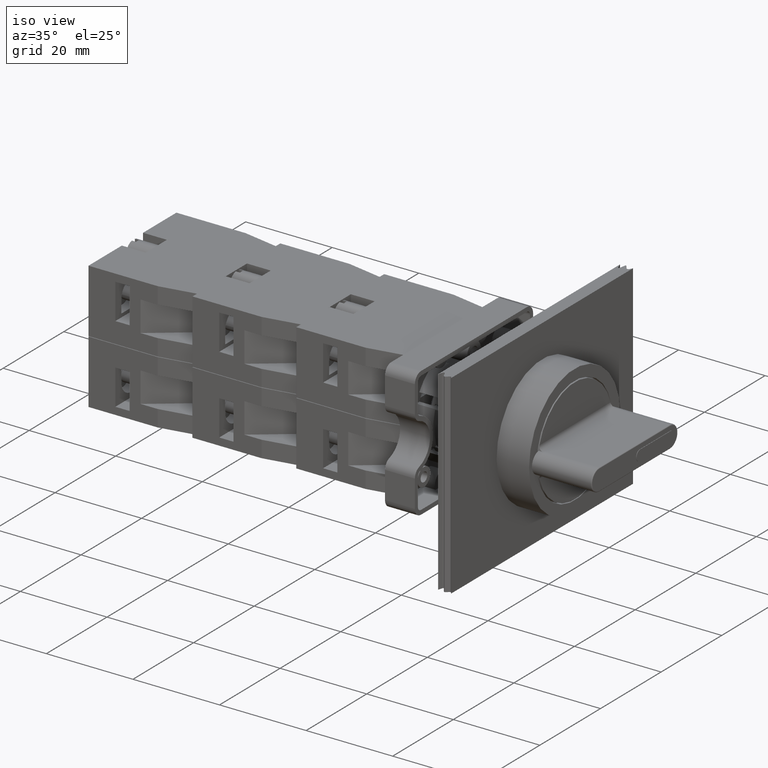
[diagram: clean part render]
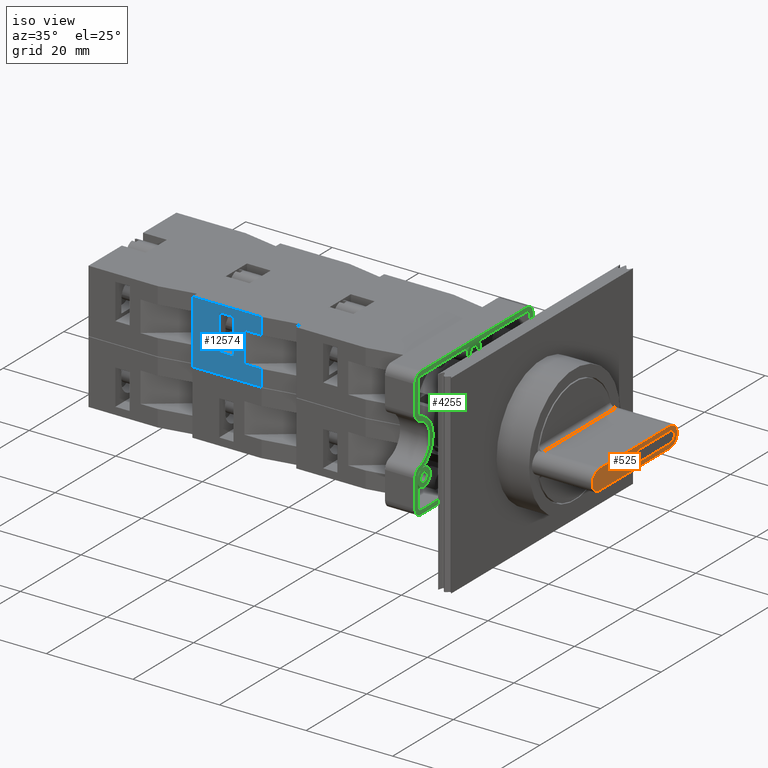
[diagram: same view with three faces highlighted in distinct colors, each labeled with its STEP entity id]
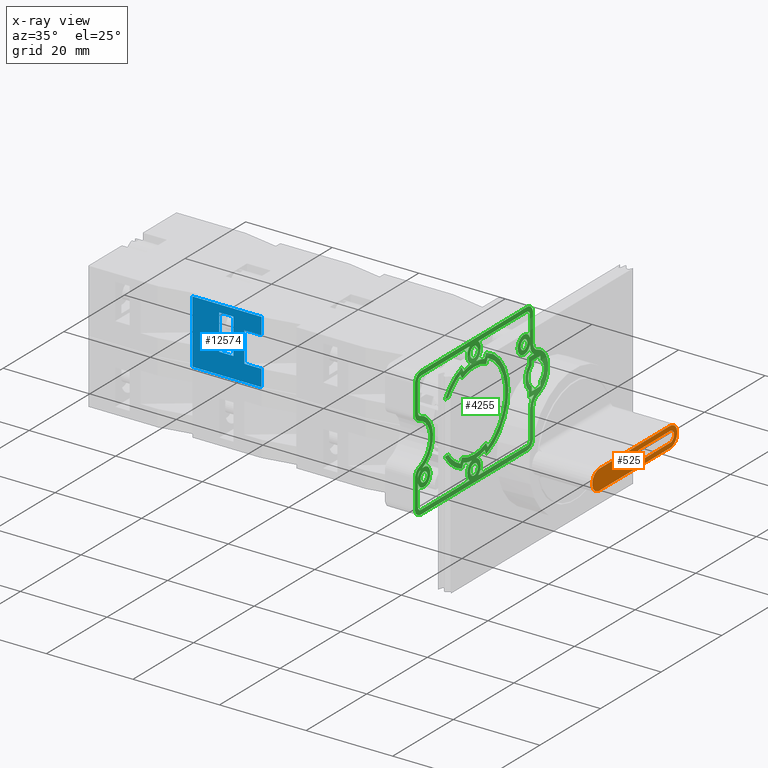
[diagram: x-ray of the same camera — body ghosted, the three highlighted faces saturated]
A machine part, iso view with three faces highlighted in distinct colors.
The next image is the same camera in x-ray (body ghosted, the three faces saturated) — at least one of them is partly hidden behind the body in this view.
Their STEP definitions:

[orange] entity #525 — the highlighted planar face has unit normal (1, 0, 0).
#162=CARTESIAN_POINT('',(15.087731840454763,12.829839215727503,-1.249999999999994));
#163=VERTEX_POINT('',#162);
#170=CARTESIAN_POINT('',(15.087731840454763,12.829839215727503,1.250000000000005));
#171=VERTEX_POINT('',#170);
#172=CARTESIAN_POINT('',(15.087731840454763,12.829839215727503,5.898060E-015));
#173=DIRECTION('',(-1.0,0.0,0.0));
#174=DIRECTION('',(0.0,0.0,-1.0));
#175=AXIS2_PLACEMENT_3D('',#172,#173,#174);
#176=CIRCLE('',#175,1.250000000000000);
#177=EDGE_CURVE('',#171,#163,#176,.T.);
#201=CARTESIAN_POINT('',(15.087731840454763,2.829839215727502,-1.249999999999994));
#202=VERTEX_POINT('',#201);
#209=CARTESIAN_POINT('',(15.087731840454763,12.829839215727503,-1.249999999999994));
#210=DIRECTION('',(0.0,-1.0,0.0));
#211=VECTOR('',#210,10.0);
#212=LINE('',#209,#211);
#213=EDGE_CURVE('',#163,#202,#212,.T.);
#233=CARTESIAN_POINT('',(15.087731840454763,2.829839215727502,1.250000000000006));
#234=VERTEX_POINT('',#233);
#241=CARTESIAN_POINT('',(15.087731840454763,2.829839215727502,5.737236E-015));
#242=DIRECTION('',(-1.0,0.0,0.0));
#243=DIRECTION('',(0.0,0.0,1.0));
#244=AXIS2_PLACEMENT_3D('',#241,#242,#243);
#245=CIRCLE('',#244,1.249999999999998);
#246=EDGE_CURVE('',#202,#234,#245,.T.);
#264=CARTESIAN_POINT('',(15.087731840454763,2.829839215727502,1.250000000000006));
#265=DIRECTION('',(0.0,1.0,0.0));
#266=VECTOR('',#265,10.0);
#267=LINE('',#264,#266);
#268=EDGE_CURVE('',#234,#171,#267,.T.);
#293=CARTESIAN_POINT('',(15.087731840454763,12.829839215727503,2.300000000000003));
#294=VERTEX_POINT('',#293);
#302=CARTESIAN_POINT('',(15.087731840454763,12.829839215727503,-2.299999999999993));
#303=VERTEX_POINT('',#302);
#304=CARTESIAN_POINT('',(15.087731840454763,12.829839215727503,4.863968E-015));
#305=DIRECTION('',(-1.0,0.0,0.0));
#306=DIRECTION('',(0.0,1.0,0.0));
#307=AXIS2_PLACEMENT_3D('',#304,#305,#306);
#308=CIRCLE('',#307,2.299999999999998);
#309=EDGE_CURVE('',#294,#303,#308,.T.);
#337=CARTESIAN_POINT('',(15.087731840454763,-10.570160784272495,2.300000000000000));
#338=VERTEX_POINT('',#337);
#346=CARTESIAN_POINT('',(15.087731840454763,-10.570160784272495,2.300000000000000));
#347=DIRECTION('',(0.0,1.0,0.0));
#348=VECTOR('',#347,23.399999999999999);
#349=LINE('',#346,#348);
#350=EDGE_CURVE('',#338,#294,#349,.T.);
#367=CARTESIAN_POINT('',(15.087731840454763,-10.570160784272495,-2.299999999999996));
#368=VERTEX_POINT('',#367);
#385=CARTESIAN_POINT('',(15.087731840454763,12.829839215727503,-2.299999999999993));
#386=DIRECTION('',(0.0,-1.0,0.0));
#387=VECTOR('',#386,23.399999999999999);
#388=LINE('',#385,#387);
#389=EDGE_CURVE('',#303,#368,#388,.T.);
#408=CARTESIAN_POINT('',(15.087731840454763,-10.570160784272495,2.132390E-032));
#409=DIRECTION('',(-1.0,0.0,0.0));
#410=DIRECTION('',(0.0,-1.0,0.0));
#411=AXIS2_PLACEMENT_3D('',#408,#409,#410);
#412=CIRCLE('',#411,2.300000000000000);
#413=EDGE_CURVE('',#368,#338,#412,.T.);
#508=CARTESIAN_POINT('',(15.087731840454763,1.129839215727503,3.157197E-015));
#509=DIRECTION('',(1.0,0.0,0.0));
#510=DIRECTION('',(0.0,0.0,-1.0));
#511=AXIS2_PLACEMENT_3D('',#508,#509,#510);
#512=PLANE('',#511);
#513=ORIENTED_EDGE('',*,*,#309,.F.);
#514=ORIENTED_EDGE('',*,*,#350,.F.);
#515=ORIENTED_EDGE('',*,*,#413,.F.);
#516=ORIENTED_EDGE('',*,*,#389,.F.);
#517=EDGE_LOOP('',(#513,#514,#515,#516));
#518=FACE_OUTER_BOUND('',#517,.T.);
#519=ORIENTED_EDGE('',*,*,#177,.T.);
#520=ORIENTED_EDGE('',*,*,#213,.T.);
#521=ORIENTED_EDGE('',*,*,#246,.T.);
#522=ORIENTED_EDGE('',*,*,#268,.T.);
#523=EDGE_LOOP('',(#519,#520,#521,#522));
#524=FACE_BOUND('',#523,.T.);
#525=ADVANCED_FACE('',(#518,#524),#512,.T.);

[blue] entity #12574 — the highlighted planar face has unit normal (-0, -1, -0).
#12395=CARTESIAN_POINT('',(-44.936741828918457,7.797073323279618,10.850000000000000));
#12396=VERTEX_POINT('',#12395);
#12405=CARTESIAN_POINT('',(-44.936741828918457,11.797073323279610,10.850000000000000));
#12406=VERTEX_POINT('',#12405);
#12407=CARTESIAN_POINT('',(-44.936741828918457,11.797073323279610,10.850000000000000));
#12408=DIRECTION('',(0.0,-1.0,0.0));
#12409=VECTOR('',#12408,3.999999999999992);
#12410=LINE('',#12407,#12409);
#12411=EDGE_CURVE('',#12406,#12396,#12410,.T.);
#12435=CARTESIAN_POINT('',(-44.936741828918457,11.797073323279610,3.850000000000001));
#12436=VERTEX_POINT('',#12435);
#12452=CARTESIAN_POINT('',(-44.936741828918457,11.797073323279610,3.850000000000001));
#12453=DIRECTION('',(0.0,0.0,1.0));
#12454=VECTOR('',#12453,6.999999999999999);
#12455=LINE('',#12452,#12454);
#12456=EDGE_CURVE('',#12436,#12406,#12455,.T.);
#12468=CARTESIAN_POINT('',(-44.936741828918457,7.797073323279618,3.850000000000000));
#12469=VERTEX_POINT('',#12468);
#12483=CARTESIAN_POINT('',(-44.936741828918457,7.797073323279618,3.850000000000000));
#12484=DIRECTION('',(0.0,1.0,0.0));
#12485=VECTOR('',#12484,3.999999999999992);
#12486=LINE('',#12483,#12485);
#12487=EDGE_CURVE('',#12469,#12436,#12486,.T.);
#12492=CARTESIAN_POINT('',(-44.936741828918457,7.797073323279626,0.0));
#12493=DIRECTION('',(-1.0,0.0,0.0));
#12494=DIRECTION('',(0.0,0.0,1.0));
#12495=AXIS2_PLACEMENT_3D('',#12492,#12493,#12494);
#12496=PLANE('',#12495);
#12497=ORIENTED_EDGE('',*,*,#12487,.T.);
#12498=ORIENTED_EDGE('',*,*,#12456,.T.);
#12499=ORIENTED_EDGE('',*,*,#12411,.T.);
#12500=CARTESIAN_POINT('',(-44.936741828918457,7.797073323279626,14.699999999999999));
#12501=VERTEX_POINT('',#12500);
#12502=CARTESIAN_POINT('',(-44.936741828918457,7.797073323279618,10.850000000000000));
#12503=DIRECTION('',(0.0,0.0,1.0));
#12504=VECTOR('',#12503,3.850000000000000);
#12505=LINE('',#12502,#12504);
#12506=EDGE_CURVE('',#12396,#12501,#12505,.T.);
#12507=ORIENTED_EDGE('',*,*,#12506,.T.);
#12508=CARTESIAN_POINT('',(-44.936741828918471,23.797073323279623,14.699999999999999));
#12509=VERTEX_POINT('',#12508);
#12510=CARTESIAN_POINT('',(-44.936741828918457,7.797073323279626,14.699999999999999));
#12511=DIRECTION('',(0.0,1.0,0.0));
#12512=VECTOR('',#12511,15.999999999999996);
#12513=LINE('',#12510,#12512);
#12514=EDGE_CURVE('',#12501,#12509,#12513,.T.);
#12515=ORIENTED_EDGE('',*,*,#12514,.T.);
#12516=CARTESIAN_POINT('',(-44.936741828918471,23.797073323279623,0.0));
#12517=VERTEX_POINT('',#12516);
#12518=CARTESIAN_POINT('',(-44.936741828918471,23.797073323279623,0.0));
#12519=DIRECTION('',(0.0,0.0,1.0));
#12520=VECTOR('',#12519,14.699999999999999);
#12521=LINE('',#12518,#12520);
#12522=EDGE_CURVE('',#12517,#12509,#12521,.T.);
#12523=ORIENTED_EDGE('',*,*,#12522,.F.);
#12524=CARTESIAN_POINT('',(-44.936741828918457,7.797073323279626,0.0));
#12525=VERTEX_POINT('',#12524);
#12526=CARTESIAN_POINT('',(-44.936741828918457,7.797073323279626,0.0));
#12527=DIRECTION('',(0.0,1.0,0.0));
#12528=VECTOR('',#12527,15.999999999999996);
#12529=LINE('',#12526,#12528);
#12530=EDGE_CURVE('',#12525,#12517,#12529,.T.);
#12531=ORIENTED_EDGE('',*,*,#12530,.F.);
#12532=CARTESIAN_POINT('',(-44.936741828918457,7.797073323279626,0.0));
#12533=DIRECTION('',(0.0,0.0,1.0));
#12534=VECTOR('',#12533,3.850000000000000);
#12535=LINE('',#12532,#12534);
#12536=EDGE_CURVE('',#12525,#12469,#12535,.T.);
#12537=ORIENTED_EDGE('',*,*,#12536,.T.);
#12538=EDGE_LOOP('',(#12497,#12498,#12499,#12507,#12515,#12523,#12531,#12537));
#12539=FACE_OUTER_BOUND('',#12538,.T.);
#12540=CARTESIAN_POINT('',(-44.936741828918457,14.297073323279621,4.800000000000002));
#12541=VERTEX_POINT('',#12540);
#12542=CARTESIAN_POINT('',(-44.936741828918471,17.597073323279623,4.800000000000001));
#12543=VERTEX_POINT('',#12542);
#12544=CARTESIAN_POINT('',(-44.936741828918457,14.297073323279621,4.800000000000002));
#12545=DIRECTION('',(0.0,1.0,0.0));
#12546=VECTOR('',#12545,3.300000000000003);
#12547=LINE('',#12544,#12546);
#12548=EDGE_CURVE('',#12541,#12543,#12547,.T.);
#12549=ORIENTED_EDGE('',*,*,#12548,.T.);
#12550=CARTESIAN_POINT('',(-44.936741828918471,17.597073323279623,13.0));
#12551=VERTEX_POINT('',#12550);
#12552=CARTESIAN_POINT('',(-44.936741828918471,17.597073323279623,4.800000000000001));
#12553=DIRECTION('',(0.0,0.0,1.0));
#12554=VECTOR('',#12553,8.199999999999999);
#12555=LINE('',#12552,#12554);
#12556=EDGE_CURVE('',#12543,#12551,#12555,.T.);
#12557=ORIENTED_EDGE('',*,*,#12556,.T.);
#12558=CARTESIAN_POINT('',(-44.936741828918457,14.297073323279623,13.0));
#12559=VERTEX_POINT('',#12558);
#12560=CARTESIAN_POINT('',(-44.936741828918471,17.597073323279623,13.0));
#12561=DIRECTION('',(0.0,-1.0,0.0));
#12562=VECTOR('',#12561,3.300000000000001);
#12563=LINE('',#12560,#12562);
#12564=EDGE_CURVE('',#12551,#12559,#12563,.T.);
#12565=ORIENTED_EDGE('',*,*,#12564,.T.);
#12566=CARTESIAN_POINT('',(-44.936741828918457,14.297073323279623,13.0));
#12567=DIRECTION('',(0.0,0.0,-1.0));
#12568=VECTOR('',#12567,8.199999999999999);
#12569=LINE('',#12566,#12568);
#12570=EDGE_CURVE('',#12559,#12541,#12569,.T.);
#12571=ORIENTED_EDGE('',*,*,#12570,.T.);
#12572=EDGE_LOOP('',(#12549,#12557,#12565,#12571));
#12573=FACE_BOUND('',#12572,.T.);
#12574=ADVANCED_FACE('',(#12539,#12573),#12496,.T.);

[green] entity #4255 — the highlighted planar face has unit normal (-1, 0, -0).
#3120=CARTESIAN_POINT('',(-5.189626604047167,-13.681846652515288,0.0));
#3121=VERTEX_POINT('',#3120);
#3136=CARTESIAN_POINT('',(-5.189626604047167,-12.480818911321720,0.0));
#3137=VERTEX_POINT('',#3136);
#3144=CARTESIAN_POINT('',(-5.189626604047167,-13.681846652515288,0.0));
#3145=DIRECTION('',(0.0,1.0,0.0));
#3146=VECTOR('',#3145,1.201027741193569);
#3147=LINE('',#3144,#3146);
#3148=EDGE_CURVE('',#3121,#3137,#3147,.T.);
#3244=CARTESIAN_POINT('',(-17.147733271788109,-13.707810312397463,0.0));
#3245=VERTEX_POINT('',#3244);
#3254=CARTESIAN_POINT('',(-17.109843499219465,-12.537016411319811,0.0));
#3255=VERTEX_POINT('',#3254);
#3256=CARTESIAN_POINT('',(-17.109843499219465,-12.537016411319811,0.0));
#3257=DIRECTION('',(-0.032345527746979,-0.999476746520283,0.0));
#3258=VECTOR('',#3257,1.171406843784826);
#3259=LINE('',#3256,#3258);
#3260=EDGE_CURVE('',#3255,#3245,#3259,.T.);
#3521=CARTESIAN_POINT('',(-21.812615408991540,-8.044228079252342,0.0));
#3522=VERTEX_POINT('',#3521);
#3529=CARTESIAN_POINT('',(-11.189626604047165,-4.047403233199363,0.0));
#3530=DIRECTION('',(0.0,0.0,-1.0));
#3531=DIRECTION('',(1.0,0.0,0.0));
#3532=AXIS2_PLACEMENT_3D('',#3529,#3530,#3531);
#3533=CIRCLE('',#3532,11.349999999999998);
#3534=EDGE_CURVE('',#3245,#3522,#3533,.T.);
#3545=CARTESIAN_POINT('',(-0.566637799102787,-8.044228079252338,0.0));
#3546=VERTEX_POINT('',#3545);
#3547=CARTESIAN_POINT('',(-11.189626604047165,-4.047403233199363,0.0));
#3548=DIRECTION('',(0.0,0.0,-1.0));
#3549=DIRECTION('',(1.0,0.0,0.0));
#3550=AXIS2_PLACEMENT_3D('',#3547,#3548,#3549);
#3551=CIRCLE('',#3550,11.349999999999998);
#3552=EDGE_CURVE('',#3546,#3121,#3551,.T.);
#3564=CARTESIAN_POINT('',(-11.189626604047159,-3.383428531595608,0.0));
#3565=DIRECTION('',(0.0,0.0,1.0));
#3566=DIRECTION('',(1.0,0.0,0.0));
#3567=AXIS2_PLACEMENT_3D('',#3564,#3565,#3566);
#3568=PLANE('',#3567);
#3569=CARTESIAN_POINT('',(-26.189626604047170,13.452596766800633,0.0));
#3570=VERTEX_POINT('',#3569);
#3571=CARTESIAN_POINT('',(-24.189626604047163,15.452596766800632,0.0));
#3572=VERTEX_POINT('',#3571);
#3573=CARTESIAN_POINT('',(-24.189626604047163,13.452596766800633,0.0));
#3574=DIRECTION('',(0.0,0.0,-1.0));
#3575=DIRECTION('',(0.0,-1.0,0.0));
#3576=AXIS2_PLACEMENT_3D('',#3573,#3574,#3575);
#3577=CIRCLE('',#3576,1.999999999999997);
#3578=EDGE_CURVE('',#3570,#3572,#3577,.T.);
#3579=ORIENTED_EDGE('',*,*,#3578,.T.);
#3580=CARTESIAN_POINT('',(-17.897830536546543,15.452596766800637,0.0));
#3581=VERTEX_POINT('',#3580);
#3582=CARTESIAN_POINT('',(-24.189626604047163,15.452596766800632,0.0));
#3583=DIRECTION('',(1.0,0.0,0.0));
#3584=VECTOR('',#3583,6.291796067500620);
#3585=LINE('',#3582,#3584);
#3586=EDGE_CURVE('',#3572,#3581,#3585,.T.);
#3587=ORIENTED_EDGE('',*,*,#3586,.T.);
#3588=CARTESIAN_POINT('',(-15.981200841546725,16.881168195372066,0.0));
#3589=VERTEX_POINT('',#3588);
#3590=CARTESIAN_POINT('',(-17.897830536546543,17.452596766800635,0.0));
#3591=DIRECTION('',(0.0,0.0,1.0));
#3592=DIRECTION('',(0.0,-1.0,0.0));
#3593=AXIS2_PLACEMENT_3D('',#3590,#3591,#3592);
#3594=CIRCLE('',#3593,2.000000000000000);
#3595=EDGE_CURVE('',#3581,#3589,#3594,.T.);
#3596=ORIENTED_EDGE('',*,*,#3595,.T.);
#3597=CARTESIAN_POINT('',(-6.398052366547629,16.881168195372069,0.0));
#3598=VERTEX_POINT('',#3597);
#3599=CARTESIAN_POINT('',(-11.189626604047175,15.452596766800639,0.0));
#3600=DIRECTION('',(0.0,0.0,-1.000000000000000));
#3601=DIRECTION('',(-0.958314847499910,-0.285714285714286,0.0));
#3602=AXIS2_PLACEMENT_3D('',#3599,#3600,#3601);
#3603=CIRCLE('',#3602,5.0);
#3604=EDGE_CURVE('',#3589,#3598,#3603,.T.);
#3605=ORIENTED_EDGE('',*,*,#3604,.T.);
#3606=CARTESIAN_POINT('',(-4.481422671547808,15.452596766800642,0.0));
#3607=VERTEX_POINT('',#3606);
#3608=CARTESIAN_POINT('',(-4.481422671547809,17.452596766800642,0.0));
#3609=DIRECTION('',(0.0,0.0,1.000000000000000));
#3610=DIRECTION('',(-0.958314847499910,-0.285714285714286,0.0));
#3611=AXIS2_PLACEMENT_3D('',#3608,#3609,#3610);
#3612=CIRCLE('',#3611,2.000000000000001);
#3613=EDGE_CURVE('',#3598,#3607,#3612,.T.);
#3614=ORIENTED_EDGE('',*,*,#3613,.T.);
#3615=CARTESIAN_POINT('',(1.810373395952825,15.452596766800644,0.0));
#3616=VERTEX_POINT('',#3615);
#3617=CARTESIAN_POINT('',(-4.481422671547808,15.452596766800642,0.0));
#3618=DIRECTION('',(1.0,0.0,0.0));
#3619=VECTOR('',#3618,6.291796067500632);
#3620=LINE('',#3617,#3619);
#3621=EDGE_CURVE('',#3607,#3616,#3620,.T.);
#3622=ORIENTED_EDGE('',*,*,#3621,.T.);
#3623=CARTESIAN_POINT('',(3.810373395952826,13.452596766800646,0.0));
#3624=VERTEX_POINT('',#3623);
#3625=CARTESIAN_POINT('',(1.810373395952826,13.452596766800646,0.0));
#3626=DIRECTION('',(0.0,0.0,-1.0));
#3627=DIRECTION('',(-1.0,0.0,0.0));
#3628=AXIS2_PLACEMENT_3D('',#3625,#3626,#3627);
#3629=CIRCLE('',#3628,1.999999999999997);
#3630=EDGE_CURVE('',#3616,#3624,#3629,.T.);
#3631=ORIENTED_EDGE('',*,*,#3630,.T.);
#3632=CARTESIAN_POINT('',(3.810373395952843,-21.547403233199354,0.0));
#3633=VERTEX_POINT('',#3632);
#3634=CARTESIAN_POINT('',(3.810373395952826,13.452596766800646,0.0));
#3635=DIRECTION('',(0.0,-1.0,0.0));
#3636=VECTOR('',#3635,35.0);
#3637=LINE('',#3634,#3636);
#3638=EDGE_CURVE('',#3624,#3633,#3637,.T.);
#3639=ORIENTED_EDGE('',*,*,#3638,.T.);
#3640=CARTESIAN_POINT('',(1.810373395952843,-23.547403233199361,0.0));
#3641=VERTEX_POINT('',#3640);
#3642=CARTESIAN_POINT('',(1.810373395952843,-21.547403233199354,0.0));
#3643=DIRECTION('',(0.0,0.0,-1.0));
#3644=DIRECTION('',(0.0,1.0,0.0));
#3645=AXIS2_PLACEMENT_3D('',#3642,#3643,#3644);
#3646=CIRCLE('',#3645,2.000000000000005);
#3647=EDGE_CURVE('',#3633,#3641,#3646,.T.);
#3648=ORIENTED_EDGE('',*,*,#3647,.T.);
#3649=CARTESIAN_POINT('',(-4.481422671547789,-23.547403233199361,0.0));
#3650=VERTEX_POINT('',#3649);
#3651=CARTESIAN_POINT('',(1.810373395952843,-23.547403233199361,0.0));
#3652=DIRECTION('',(-1.0,0.0,0.0));
#3653=VECTOR('',#3652,6.291796067500632);
#3654=LINE('',#3651,#3653);
#3655=EDGE_CURVE('',#3641,#3650,#3654,.T.);
#3656=ORIENTED_EDGE('',*,*,#3655,.T.);
#3657=CARTESIAN_POINT('',(-6.398052366547606,-22.118831804627931,0.0));
#3658=VERTEX_POINT('',#3657);
#3659=CARTESIAN_POINT('',(-4.481422671547789,-21.547403233199354,0.0));
#3660=DIRECTION('',(0.0,0.0,-1.000000000000000));
#3661=DIRECTION('',(0.958314847499909,0.285714285714287,0.0));
#3662=AXIS2_PLACEMENT_3D('',#3659,#3660,#3661);
#3663=CIRCLE('',#3662,1.999999999999997);
#3664=EDGE_CURVE('',#3650,#3658,#3663,.T.);
#3665=ORIENTED_EDGE('',*,*,#3664,.T.);
#3666=CARTESIAN_POINT('',(-15.981200841546706,-22.118831804627934,0.0));
#3667=VERTEX_POINT('',#3666);
#3668=CARTESIAN_POINT('',(-11.189626604047156,-23.547403233199361,0.0));
#3669=DIRECTION('',(0.0,0.0,1.000000000000000));
#3670=DIRECTION('',(0.958314847499910,0.285714285714286,0.0));
#3671=AXIS2_PLACEMENT_3D('',#3668,#3669,#3670);
#3672=CIRCLE('',#3671,5.0);
#3673=EDGE_CURVE('',#3658,#3667,#3672,.T.);
#3674=ORIENTED_EDGE('',*,*,#3673,.T.);
#3675=CARTESIAN_POINT('',(-17.897830536546525,-23.547403233199368,0.0));
#3676=VERTEX_POINT('',#3675);
#3677=CARTESIAN_POINT('',(-17.897830536546525,-21.547403233199361,0.0));
#3678=DIRECTION('',(0.0,0.0,-1.0));
#3679=DIRECTION('',(0.0,1.0,0.0));
#3680=AXIS2_PLACEMENT_3D('',#3677,#3678,#3679);
#3681=CIRCLE('',#3680,2.000000000000002);
#3682=EDGE_CURVE('',#3667,#3676,#3681,.T.);
#3683=ORIENTED_EDGE('',*,*,#3682,.T.);
#3684=CARTESIAN_POINT('',(-24.189626604047163,-23.547403233199372,0.0));
#3685=VERTEX_POINT('',#3684);
#3686=CARTESIAN_POINT('',(-17.897830536546525,-23.547403233199368,0.0));
#3687=DIRECTION('',(-1.0,0.0,0.0));
#3688=VECTOR('',#3687,6.291796067500638);
#3689=LINE('',#3686,#3688);
#3690=EDGE_CURVE('',#3676,#3685,#3689,.T.);
#3691=ORIENTED_EDGE('',*,*,#3690,.T.);
#3692=CARTESIAN_POINT('',(-26.189626604047163,-21.547403233199368,0.0));
#3693=VERTEX_POINT('',#3692);
#3694=CARTESIAN_POINT('',(-24.189626604047163,-21.547403233199368,0.0));
#3695=DIRECTION('',(0.0,0.0,-1.0));
#3696=DIRECTION('',(1.0,0.0,0.0));
#3697=AXIS2_PLACEMENT_3D('',#3694,#3695,#3696);
#3698=CIRCLE('',#3697,1.999999999999997);
#3699=EDGE_CURVE('',#3685,#3693,#3698,.T.);
#3700=ORIENTED_EDGE('',*,*,#3699,.T.);
#3701=CARTESIAN_POINT('',(-26.189626604047163,-21.547403233199368,0.0));
#3702=DIRECTION('',(0.0,1.0,0.0));
#3703=VECTOR('',#3702,35.0);
#3704=LINE('',#3701,#3703);
#3705=EDGE_CURVE('',#3693,#3570,#3704,.T.);
#3706=ORIENTED_EDGE('',*,*,#3705,.T.);
#3707=EDGE_LOOP('',(#3579,#3587,#3596,#3605,#3614,#3622,#3631,#3639,#3648,#3656,#3665,#3674,#3683,#3691,#3700,#3706));
#3708=FACE_OUTER_BOUND('',#3707,.T.);
#3709=ORIENTED_EDGE('',*,*,#3148,.T.);
#3710=CARTESIAN_POINT('',(-1.869084774303573,-8.547403233199361,0.0));
#3711=VERTEX_POINT('',#3710);
#3712=CARTESIAN_POINT('',(-11.189626604047165,-4.047403233199363,0.0));
#3713=DIRECTION('',(0.0,0.0,1.0));
#3714=DIRECTION('',(1.0,0.0,0.0));
#3715=AXIS2_PLACEMENT_3D('',#3712,#3713,#3714);
#3716=CIRCLE('',#3715,10.350000000000000);
#3717=EDGE_CURVE('',#3137,#3711,#3716,.T.);
#3718=ORIENTED_EDGE('',*,*,#3717,.T.);
#3719=CARTESIAN_POINT('',(-2.960258463053593,-8.047403233199361,0.0));
#3720=VERTEX_POINT('',#3719);
#3721=CARTESIAN_POINT('',(-1.869084774303573,-8.547403233199361,0.0));
#3722=DIRECTION('',(-0.909103089030897,0.416571210616482,0.0));
#3723=VECTOR('',#3722,1.200274976420122);
#3724=LINE('',#3721,#3723);
#3725=EDGE_CURVE('',#3711,#3720,#3724,.T.);
#3726=ORIENTED_EDGE('',*,*,#3725,.T.);
#3727=CARTESIAN_POINT('',(-2.960258463053593,-0.047403233199362,0.0));
#3728=VERTEX_POINT('',#3727);
#3729=CARTESIAN_POINT('',(-11.189626604047165,-4.047403233199363,0.0));
#3730=DIRECTION('',(0.0,0.0,1.0));
#3731=DIRECTION('',(-1.0,0.0,0.0));
#3732=AXIS2_PLACEMENT_3D('',#3729,#3730,#3731);
#3733=CIRCLE('',#3732,9.150000000000000);
#3734=EDGE_CURVE('',#3720,#3728,#3733,.T.);
#3735=ORIENTED_EDGE('',*,*,#3734,.T.);
#3736=CARTESIAN_POINT('',(-1.869084774303575,0.452596766800639,0.0));
#3737=VERTEX_POINT('',#3736);
#3738=CARTESIAN_POINT('',(-2.960258463053593,-0.047403233199362,0.0));
#3739=DIRECTION('',(0.909103089030896,0.416571210616484,0.0));
#3740=VECTOR('',#3739,1.200274976420121);
#3741=LINE('',#3738,#3740);
#3742=EDGE_CURVE('',#3728,#3737,#3741,.T.);
#3743=ORIENTED_EDGE('',*,*,#3742,.T.);
#3744=CARTESIAN_POINT('',(-20.510168433790756,0.452596766800638,0.0));
#3745=VERTEX_POINT('',#3744);
#3746=CARTESIAN_POINT('',(-11.189626604047165,-4.047403233199363,0.0));
#3747=DIRECTION('',(0.0,0.0,1.0));
#3748=DIRECTION('',(1.0,0.0,0.0));
#3749=AXIS2_PLACEMENT_3D('',#3746,#3747,#3748);
#3750=CIRCLE('',#3749,10.350000000000000);
#3751=EDGE_CURVE('',#3737,#3745,#3750,.T.);
#3752=ORIENTED_EDGE('',*,*,#3751,.T.);
#3753=CARTESIAN_POINT('',(-19.418994745040735,-0.047403233199362,0.0));
#3754=VERTEX_POINT('',#3753);
#3755=CARTESIAN_POINT('',(-20.510168433790756,0.452596766800638,0.0));
#3756=DIRECTION('',(0.909103089030897,-0.416571210616482,0.0));
#3757=VECTOR('',#3756,1.200274976420124);
#3758=LINE('',#3755,#3757);
#3759=EDGE_CURVE('',#3745,#3754,#3758,.T.);
#3760=ORIENTED_EDGE('',*,*,#3759,.T.);
#3761=CARTESIAN_POINT('',(-19.418994745040735,-8.047403233199361,0.0));
#3762=VERTEX_POINT('',#3761);
#3763=CARTESIAN_POINT('',(-11.189626604047165,-4.047403233199363,0.0));
#3764=DIRECTION('',(0.0,0.0,1.0));
#3765=DIRECTION('',(-1.0,0.0,0.0));
#3766=AXIS2_PLACEMENT_3D('',#3763,#3764,#3765);
#3767=CIRCLE('',#3766,9.150000000000000);
#3768=EDGE_CURVE('',#3754,#3762,#3767,.T.);
#3769=ORIENTED_EDGE('',*,*,#3768,.T.);
#3770=CARTESIAN_POINT('',(-20.510168433790756,-8.547403233199361,0.0));
#3771=VERTEX_POINT('',#3770);
#3772=CARTESIAN_POINT('',(-19.418994745040735,-8.047403233199361,0.0));
#3773=DIRECTION('',(-0.909103089030897,-0.416571210616482,0.0));
#3774=VECTOR('',#3773,1.200274976420124);
#3775=LINE('',#3772,#3774);
#3776=EDGE_CURVE('',#3762,#3771,#3775,.T.);
#3777=ORIENTED_EDGE('',*,*,#3776,.T.);
#3778=CARTESIAN_POINT('',(-11.189626604047165,-4.047403233199363,0.0));
#3779=DIRECTION('',(0.0,0.0,1.0));
#3780=DIRECTION('',(1.0,0.0,0.0));
#3781=AXIS2_PLACEMENT_3D('',#3778,#3779,#3780);
#3782=CIRCLE('',#3781,10.350000000000000);
#3783=EDGE_CURVE('',#3771,#3255,#3782,.T.);
#3784=ORIENTED_EDGE('',*,*,#3783,.T.);
#3785=ORIENTED_EDGE('',*,*,#3260,.T.);
#3786=ORIENTED_EDGE('',*,*,#3534,.T.);
#3787=CARTESIAN_POINT('',(-20.718711718520364,-7.542977131878286,0.0));
#3788=VERTEX_POINT('',#3787);
#3789=CARTESIAN_POINT('',(-21.812615408991540,-8.044228079252342,0.0));
#3790=DIRECTION('',(0.909103089030896,0.416571210616484,0.0));
#3791=VECTOR('',#3790,1.203277938079914);
#3792=LINE('',#3789,#3791);
#3793=EDGE_CURVE('',#3522,#3788,#3792,.T.);
#3794=ORIENTED_EDGE('',*,*,#3793,.T.);
#3795=CARTESIAN_POINT('',(-21.312993950985941,-4.782204947224163,0.0));
#3796=VERTEX_POINT('',#3795);
#3797=CARTESIAN_POINT('',(-11.189626604047165,-4.047403233199363,0.0));
#3798=DIRECTION('',(0.0,0.0,-1.0));
#3799=DIRECTION('',(-1.0,0.0,0.0));
#3800=AXIS2_PLACEMENT_3D('',#3797,#3798,#3799);
#3801=CIRCLE('',#3800,10.150000000000002);
#3802=EDGE_CURVE('',#3788,#3796,#3801,.T.);
#3803=ORIENTED_EDGE('',*,*,#3802,.T.);
#3804=CARTESIAN_POINT('',(-25.189626604047163,-5.461616795572465,0.0));
#3805=VERTEX_POINT('',#3804);
#3806=CARTESIAN_POINT('',(-23.439626604047167,-4.047403233199368,0.0));
#3807=DIRECTION('',(0.0,0.0,-1.0));
#3808=DIRECTION('',(-1.0,0.0,0.0));
#3809=AXIS2_PLACEMENT_3D('',#3806,#3807,#3808);
#3810=CIRCLE('',#3809,2.250000000000000);
#3811=EDGE_CURVE('',#3796,#3805,#3810,.T.);
#3812=ORIENTED_EDGE('',*,*,#3811,.T.);
#3813=CARTESIAN_POINT('',(-25.189626604047163,-21.547403233199368,0.0));
#3814=VERTEX_POINT('',#3813);
#3815=CARTESIAN_POINT('',(-25.189626604047163,-5.461616795572465,0.0));
#3816=DIRECTION('',(0.0,-1.0,0.0));
#3817=VECTOR('',#3816,16.085786437626904);
#3818=LINE('',#3815,#3817);
#3819=EDGE_CURVE('',#3805,#3814,#3818,.T.);
#3820=ORIENTED_EDGE('',*,*,#3819,.T.);
#3821=CARTESIAN_POINT('',(-24.189626604047163,-22.547403233199368,0.0));
#3822=VERTEX_POINT('',#3821);
#3823=CARTESIAN_POINT('',(-24.189626604047163,-21.547403233199368,0.0));
#3824=DIRECTION('',(0.0,0.0,1.0));
#3825=DIRECTION('',(1.0,0.0,0.0));
#3826=AXIS2_PLACEMENT_3D('',#3823,#3824,#3825);
#3827=CIRCLE('',#3826,0.999999999999997);
#3828=EDGE_CURVE('',#3814,#3822,#3827,.T.);
#3829=ORIENTED_EDGE('',*,*,#3828,.T.);
#3830=CARTESIAN_POINT('',(-19.329939027790488,-22.547403233199365,0.0));
#3831=VERTEX_POINT('',#3830);
#3832=CARTESIAN_POINT('',(-24.189626604047163,-22.547403233199368,0.0));
#3833=DIRECTION('',(1.0,0.0,0.0));
#3834=VECTOR('',#3833,4.859687576256675);
#3835=LINE('',#3832,#3834);
#3836=EDGE_CURVE('',#3822,#3831,#3835,.T.);
#3837=ORIENTED_EDGE('',*,*,#3836,.T.);
#3838=CARTESIAN_POINT('',(-16.657572870619152,-21.077268899629345,0.0));
#3839=VERTEX_POINT('',#3838);
#3840=CARTESIAN_POINT('',(-18.689626604047163,-20.547403233199375,0.0));
#3841=DIRECTION('',(0.0,0.0,-1.0));
#3842=DIRECTION('',(-1.0,0.0,0.0));
#3843=AXIS2_PLACEMENT_3D('',#3840,#3841,#3842);
#3844=CIRCLE('',#3843,2.100000000000000);
#3845=EDGE_CURVE('',#3831,#3839,#3844,.T.);
#3846=ORIENTED_EDGE('',*,*,#3845,.T.);
#3847=CARTESIAN_POINT('',(-5.439737519047697,-21.833117518913639,0.0));
#3848=VERTEX_POINT('',#3847);
#3849=CARTESIAN_POINT('',(-11.189626604047156,-23.547403233199361,0.0));
#3850=DIRECTION('',(0.0,0.0,-1.000000000000000));
#3851=DIRECTION('',(0.958314847499910,0.285714285714286,0.0));
#3852=AXIS2_PLACEMENT_3D('',#3849,#3850,#3851);
#3853=CIRCLE('',#3852,5.999999999999999);
#3854=EDGE_CURVE('',#3839,#3848,#3853,.T.);
#3855=ORIENTED_EDGE('',*,*,#3854,.T.);
#3856=CARTESIAN_POINT('',(-4.481422671547789,-22.547403233199361,0.0));
#3857=VERTEX_POINT('',#3856);
#3858=CARTESIAN_POINT('',(-4.481422671547789,-21.547403233199354,0.0));
#3859=DIRECTION('',(0.0,0.0,1.0));
#3860=DIRECTION('',(0.958314847499909,0.285714285714287,0.0));
#3861=AXIS2_PLACEMENT_3D('',#3858,#3859,#3860);
#3862=CIRCLE('',#3861,0.999999999999997);
#3863=EDGE_CURVE('',#3848,#3857,#3862,.T.);
#3864=ORIENTED_EDGE('',*,*,#3863,.T.);
#3865=CARTESIAN_POINT('',(1.810373395952843,-22.547403233199361,0.0));
#3866=VERTEX_POINT('',#3865);
#3867=CARTESIAN_POINT('',(-4.481422671547789,-22.547403233199361,0.0));
#3868=DIRECTION('',(1.0,0.0,0.0));
#3869=VECTOR('',#3868,6.291796067500632);
#3870=LINE('',#3867,#3869);
#3871=EDGE_CURVE('',#3857,#3866,#3870,.T.);
#3872=ORIENTED_EDGE('',*,*,#3871,.T.);
#3873=CARTESIAN_POINT('',(2.810373395952843,-21.547403233199354,0.0));
#3874=VERTEX_POINT('',#3873);
#3875=CARTESIAN_POINT('',(1.810373395952843,-21.547403233199354,0.0));
#3876=DIRECTION('',(0.0,0.0,1.0));
#3877=DIRECTION('',(0.0,1.0,0.0));
#3878=AXIS2_PLACEMENT_3D('',#3875,#3876,#3877);
#3879=CIRCLE('',#3878,1.000000000000005);
#3880=EDGE_CURVE('',#3866,#3874,#3879,.T.);
#3881=ORIENTED_EDGE('',*,*,#3880,.T.);
#3882=CARTESIAN_POINT('',(2.810373395952835,-5.461616795572453,0.0));
#3883=VERTEX_POINT('',#3882);
#3884=CARTESIAN_POINT('',(2.810373395952843,-21.547403233199354,0.0));
#3885=DIRECTION('',(0.0,1.0,0.0));
#3886=VECTOR('',#3885,16.085786437626901);
#3887=LINE('',#3884,#3886);
#3888=EDGE_CURVE('',#3874,#3883,#3887,.T.);
#3889=ORIENTED_EDGE('',*,*,#3888,.T.);
#3890=CARTESIAN_POINT('',(-1.066259257108388,-4.782204947224153,0.0));
#3891=VERTEX_POINT('',#3890);
#3892=CARTESIAN_POINT('',(1.060373395952836,-4.047403233199356,0.0));
#3893=DIRECTION('',(0.0,0.0,-1.0));
#3894=DIRECTION('',(-1.0,0.0,0.0));
#3895=AXIS2_PLACEMENT_3D('',#3892,#3893,#3894);
#3896=CIRCLE('',#3895,2.250000000000000);
#3897=EDGE_CURVE('',#3883,#3891,#3896,.T.);
#3898=ORIENTED_EDGE('',*,*,#3897,.T.);
#3899=CARTESIAN_POINT('',(-1.660541489573968,-7.542977131878286,0.0));
#3900=VERTEX_POINT('',#3899);
#3901=CARTESIAN_POINT('',(-11.189626604047165,-4.047403233199363,0.0));
#3902=DIRECTION('',(0.0,0.0,-1.0));
#3903=DIRECTION('',(-1.0,0.0,0.0));
#3904=AXIS2_PLACEMENT_3D('',#3901,#3902,#3903);
#3905=CIRCLE('',#3904,10.150000000000002);
#3906=EDGE_CURVE('',#3891,#3900,#3905,.T.);
#3907=ORIENTED_EDGE('',*,*,#3906,.T.);
#3908=CARTESIAN_POINT('',(-1.660541489573968,-7.542977131878286,0.0));
#3909=DIRECTION('',(0.909103089030897,-0.416571210616480,0.0));
#3910=VECTOR('',#3909,1.203277938079916);
#3911=LINE('',#3908,#3910);
#3912=EDGE_CURVE('',#3900,#3546,#3911,.T.);
#3913=ORIENTED_EDGE('',*,*,#3912,.T.);
#3914=ORIENTED_EDGE('',*,*,#3552,.T.);
#3915=EDGE_LOOP('',(#3709,#3718,#3726,#3735,#3743,#3752,#3760,#3769,#3777,#3784,#3785,#3786,#3794,#3803,#3812,#3820,#3829,#3837,#3846,#3855,#3864,#3872,#3881,#3889,#3898,#3907,#3913,#3914));
#3916=FACE_BOUND('',#3915,.T.);
#3917=CARTESIAN_POINT('',(-21.812615408991540,-0.050578387146383,0.0));
#3918=VERTEX_POINT('',#3917);
#3919=CARTESIAN_POINT('',(-0.566637799102790,-0.050578387146381,0.0));
#3920=VERTEX_POINT('',#3919);
#3921=CARTESIAN_POINT('',(-11.189626604047165,-4.047403233199363,0.0));
#3922=DIRECTION('',(0.0,0.0,-1.0));
#3923=DIRECTION('',(1.0,0.0,0.0));
#3924=AXIS2_PLACEMENT_3D('',#3921,#3922,#3923);
#3925=CIRCLE('',#3924,11.349999999999998);
#3926=EDGE_CURVE('',#3918,#3920,#3925,.T.);
#3927=ORIENTED_EDGE('',*,*,#3926,.T.);
#3928=CARTESIAN_POINT('',(-1.660541489573968,-0.551829334520438,0.0));
#3929=VERTEX_POINT('',#3928);
#3930=CARTESIAN_POINT('',(-0.566637799102790,-0.050578387146381,0.0));
#3931=DIRECTION('',(-0.909103089030896,-0.416571210616484,0.0));
#3932=VECTOR('',#3931,1.203277938079915);
#3933=LINE('',#3930,#3932);
#3934=EDGE_CURVE('',#3920,#3929,#3933,.T.);
#3935=ORIENTED_EDGE('',*,*,#3934,.T.);
#3936=CARTESIAN_POINT('',(-1.066259257108389,-3.312601519174561,0.0));
#3937=VERTEX_POINT('',#3936);
#3938=CARTESIAN_POINT('',(-11.189626604047165,-4.047403233199363,0.0));
#3939=DIRECTION('',(0.0,0.0,-1.0));
#3940=DIRECTION('',(-1.0,0.0,0.0));
#3941=AXIS2_PLACEMENT_3D('',#3938,#3939,#3940);
#3942=CIRCLE('',#3941,10.150000000000002);
#3943=EDGE_CURVE('',#3929,#3937,#3942,.T.);
#3944=ORIENTED_EDGE('',*,*,#3943,.T.);
#3945=CARTESIAN_POINT('',(2.810373395952834,-2.633189670826257,0.0));
#3946=VERTEX_POINT('',#3945);
#3947=CARTESIAN_POINT('',(1.060373395952836,-4.047403233199356,0.0));
#3948=DIRECTION('',(0.0,0.0,-1.0));
#3949=DIRECTION('',(-1.0,0.0,0.0));
#3950=AXIS2_PLACEMENT_3D('',#3947,#3948,#3949);
#3951=CIRCLE('',#3950,2.250000000000000);
#3952=EDGE_CURVE('',#3937,#3946,#3951,.T.);
#3953=ORIENTED_EDGE('',*,*,#3952,.T.);
#3954=CARTESIAN_POINT('',(2.810373395952825,13.452596766800644,0.0));
#3955=VERTEX_POINT('',#3954);
#3956=CARTESIAN_POINT('',(2.810373395952834,-2.633189670826257,0.0));
#3957=DIRECTION('',(0.0,1.0,0.0));
#3958=VECTOR('',#3957,16.085786437626901);
#3959=LINE('',#3956,#3958);
#3960=EDGE_CURVE('',#3946,#3955,#3959,.T.);
#3961=ORIENTED_EDGE('',*,*,#3960,.T.);
#3962=CARTESIAN_POINT('',(1.810373395952825,14.452596766800641,0.0));
#3963=VERTEX_POINT('',#3962);
#3964=CARTESIAN_POINT('',(1.810373395952826,13.452596766800646,0.0));
#3965=DIRECTION('',(0.0,0.0,1.0));
#3966=DIRECTION('',(-1.0,0.0,0.0));
#3967=AXIS2_PLACEMENT_3D('',#3964,#3965,#3966);
#3968=CIRCLE('',#3967,0.999999999999997);
#3969=EDGE_CURVE('',#3955,#3963,#3968,.T.);
#3970=ORIENTED_EDGE('',*,*,#3969,.T.);
#3971=CARTESIAN_POINT('',(-3.049314180303885,14.452596766800642,0.0));
#3972=VERTEX_POINT('',#3971);
#3973=CARTESIAN_POINT('',(1.810373395952825,14.452596766800641,0.0));
#3974=DIRECTION('',(-1.0,0.0,0.0));
#3975=VECTOR('',#3974,4.859687576256709);
#3976=LINE('',#3973,#3975);
#3977=EDGE_CURVE('',#3963,#3972,#3976,.T.);
#3978=ORIENTED_EDGE('',*,*,#3977,.T.);
#3979=CARTESIAN_POINT('',(-4.329939027790464,14.452596766800642,0.0));
#3980=VERTEX_POINT('',#3979);
#3981=CARTESIAN_POINT('',(-3.689626604047174,12.452596766800642,0.0));
#3982=DIRECTION('',(0.0,0.0,-1.0));
#3983=DIRECTION('',(-1.0,0.0,0.0));
#3984=AXIS2_PLACEMENT_3D('',#3981,#3982,#3983);
#3985=CIRCLE('',#3984,2.100000000000000);
#3986=EDGE_CURVE('',#3972,#3980,#3985,.T.);
#3987=ORIENTED_EDGE('',*,*,#3986,.T.);
#3988=CARTESIAN_POINT('',(-4.481422671547808,14.452596766800641,0.0));
#3989=VERTEX_POINT('',#3988);
#3990=CARTESIAN_POINT('',(-4.329939027790464,14.452596766800642,0.0));
#3991=DIRECTION('',(-1.0,0.0,0.0));
#3992=VECTOR('',#3991,0.151483643757344);
#3993=LINE('',#3990,#3992);
#3994=EDGE_CURVE('',#3980,#3989,#3993,.T.);
#3995=ORIENTED_EDGE('',*,*,#3994,.T.);
#3996=CARTESIAN_POINT('',(-6.989626604047169,15.806719179312815,0.0));
#3997=VERTEX_POINT('',#3996);
#3998=CARTESIAN_POINT('',(-4.481422671547809,17.452596766800642,0.0));
#3999=DIRECTION('',(0.0,0.0,-1.0));
#4000=DIRECTION('',(-0.958314847499910,-0.285714285714286,0.0));
#4001=AXIS2_PLACEMENT_3D('',#3998,#3999,#4000);
#4002=CIRCLE('',#4001,3.000000000000002);
#4003=EDGE_CURVE('',#3989,#3997,#4002,.T.);
#4004=ORIENTED_EDGE('',*,*,#4003,.T.);
#4005=CARTESIAN_POINT('',(-6.989626604047167,14.002596766800650,0.0));
#4006=VERTEX_POINT('',#4005);
#4007=CARTESIAN_POINT('',(-6.989626604047169,15.806719179312815,0.0));
#4008=DIRECTION('',(0.0,-1.0,0.0));
#4009=VECTOR('',#4008,1.804122412512164);
#4010=LINE('',#4007,#4009);
#4011=EDGE_CURVE('',#3997,#4006,#4010,.T.);
#4012=ORIENTED_EDGE('',*,*,#4011,.T.);
#4013=CARTESIAN_POINT('',(-8.551919266225172,14.002596766800643,0.0));
#4014=VERTEX_POINT('',#4013);
#4015=CARTESIAN_POINT('',(-6.989626604047167,14.002596766800650,0.0));
#4016=DIRECTION('',(-1.0,0.0,0.0));
#4017=VECTOR('',#4016,1.562292662178004);
#4018=LINE('',#4015,#4017);
#4019=EDGE_CURVE('',#4006,#4014,#4018,.T.);
#4020=ORIENTED_EDGE('',*,*,#4019,.T.);
#4021=CARTESIAN_POINT('',(-13.827333941869163,14.002596766800641,0.0));
#4022=VERTEX_POINT('',#4021);
#4023=CARTESIAN_POINT('',(-11.189626604047172,16.452596766800639,0.0));
#4024=DIRECTION('',(0.0,0.0,-1.0));
#4025=DIRECTION('',(-0.830047763650278,-0.557692307692308,0.0));
#4026=AXIS2_PLACEMENT_3D('',#4023,#4024,#4025);
#4027=CIRCLE('',#4026,3.600000000000000);
#4028=EDGE_CURVE('',#4014,#4022,#4027,.T.);
#4029=ORIENTED_EDGE('',*,*,#4028,.T.);
#4030=CARTESIAN_POINT('',(-15.389626604047169,14.002596766800636,0.0));
#4031=VERTEX_POINT('',#4030);
#4032=CARTESIAN_POINT('',(-13.827333941869163,14.002596766800641,0.0));
#4033=DIRECTION('',(-1.0,0.0,0.0));
#4034=VECTOR('',#4033,1.562292662178006);
#4035=LINE('',#4032,#4034);
#4036=EDGE_CURVE('',#4022,#4031,#4035,.T.);
#4037=ORIENTED_EDGE('',*,*,#4036,.T.);
#4038=CARTESIAN_POINT('',(-15.389626604047169,15.806719179312834,0.0));
#4039=VERTEX_POINT('',#4038);
#4040=CARTESIAN_POINT('',(-15.389626604047169,14.002596766800636,0.0));
#4041=DIRECTION('',(0.0,1.0,0.0));
#4042=VECTOR('',#4041,1.804122412512198);
#4043=LINE('',#4040,#4042);
#4044=EDGE_CURVE('',#4031,#4039,#4043,.T.);
#4045=ORIENTED_EDGE('',*,*,#4044,.T.);
#4046=CARTESIAN_POINT('',(-17.897830536546543,14.452596766800635,0.0));
#4047=VERTEX_POINT('',#4046);
#4048=CARTESIAN_POINT('',(-17.897830536546543,17.452596766800635,0.0));
#4049=DIRECTION('',(0.0,0.0,-1.0));
#4050=DIRECTION('',(0.0,-1.0,0.0));
#4051=AXIS2_PLACEMENT_3D('',#4048,#4049,#4050);
#4052=CIRCLE('',#4051,2.999999999999999);
#4053=EDGE_CURVE('',#4039,#4047,#4052,.T.);
#4054=ORIENTED_EDGE('',*,*,#4053,.T.);
#4055=CARTESIAN_POINT('',(-24.189626604047163,14.452596766800632,0.0));
#4056=VERTEX_POINT('',#4055);
#4057=CARTESIAN_POINT('',(-17.897830536546543,14.452596766800635,0.0));
#4058=DIRECTION('',(-1.0,0.0,0.0));
#4059=VECTOR('',#4058,6.291796067500620);
#4060=LINE('',#4057,#4059);
#4061=EDGE_CURVE('',#4047,#4056,#4060,.T.);
#4062=ORIENTED_EDGE('',*,*,#4061,.T.);
#4063=CARTESIAN_POINT('',(-25.189626604047170,13.452596766800632,0.0));
#4064=VERTEX_POINT('',#4063);
#4065=CARTESIAN_POINT('',(-24.189626604047163,13.452596766800633,0.0));
#4066=DIRECTION('',(0.0,0.0,1.0));
#4067=DIRECTION('',(0.0,-1.0,0.0));
#4068=AXIS2_PLACEMENT_3D('',#4065,#4066,#4067);
#4069=CIRCLE('',#4068,0.999999999999997);
#4070=EDGE_CURVE('',#4056,#4064,#4069,.T.);
#4071=ORIENTED_EDGE('',*,*,#4070,.T.);
#4072=CARTESIAN_POINT('',(-25.189626604047163,-2.633189670826273,0.0));
#4073=VERTEX_POINT('',#4072);
#4074=CARTESIAN_POINT('',(-25.189626604047170,13.452596766800632,0.0));
#4075=DIRECTION('',(0.0,-1.0,0.0));
#4076=VECTOR('',#4075,16.085786437626904);
#4077=LINE('',#4074,#4076);
#4078=EDGE_CURVE('',#4064,#4073,#4077,.T.);
#4079=ORIENTED_EDGE('',*,*,#4078,.T.);
#4080=CARTESIAN_POINT('',(-21.312993950985941,-3.312601519174572,0.0));
#4081=VERTEX_POINT('',#4080);
#4082=CARTESIAN_POINT('',(-23.439626604047167,-4.047403233199368,0.0));
#4083=DIRECTION('',(0.0,0.0,-1.0));
#4084=DIRECTION('',(-1.0,0.0,0.0));
#4085=AXIS2_PLACEMENT_3D('',#4082,#4083,#4084);
#4086=CIRCLE('',#4085,2.250000000000000);
#4087=EDGE_CURVE('',#4073,#4081,#4086,.T.);
#4088=ORIENTED_EDGE('',*,*,#4087,.T.);
#4089=CARTESIAN_POINT('',(-20.718711718520360,-0.551829334520439,0.0));
#4090=VERTEX_POINT('',#4089);
#4091=CARTESIAN_POINT('',(-11.189626604047165,-4.047403233199363,0.0));
#4092=DIRECTION('',(0.0,0.0,-1.0));
#4093=DIRECTION('',(-1.0,0.0,0.0));
#4094=AXIS2_PLACEMENT_3D('',#4091,#4092,#4093);
#4095=CIRCLE('',#4094,10.150000000000002);
#4096=EDGE_CURVE('',#4081,#4090,#4095,.T.);
#4097=ORIENTED_EDGE('',*,*,#4096,.T.);
#4098=CARTESIAN_POINT('',(-20.718711718520360,-0.551829334520439,0.0));
#4099=DIRECTION('',(-0.909103089030896,0.416571210616483,0.0));
#4100=VECTOR('',#4099,1.203277938079917);
#4101=LINE('',#4098,#4100);
#4102=EDGE_CURVE('',#4090,#3918,#4101,.T.);
#4103=ORIENTED_EDGE('',*,*,#4102,.T.);
#4104=EDGE_LOOP('',(#3927,#3935,#3944,#3953,#3961,#3970,#3978,#3987,#3995,#4004,#4012,#4020,#4029,#4037,#4045,#4054,#4062,#4071,#4079,#4088,#4097,#4103));
#4105=FACE_BOUND('',#4104,.T.);
#4106=CARTESIAN_POINT('',(-16.939515689046615,-21.833117518913649,0.0));
#4107=VERTEX_POINT('',#4106);
#4108=CARTESIAN_POINT('',(-16.852714820233793,-21.565123773665956,0.0));
#4109=VERTEX_POINT('',#4108);
#4110=CARTESIAN_POINT('',(-11.189626604047156,-23.547403233199361,0.0));
#4111=DIRECTION('',(0.0,0.0,-1.000000000000000));
#4112=DIRECTION('',(0.958314847499910,0.285714285714286,0.0));
#4113=AXIS2_PLACEMENT_3D('',#4110,#4111,#4112);
#4114=CIRCLE('',#4113,5.999999999999999);
#4115=EDGE_CURVE('',#4107,#4109,#4114,.T.);
#4116=ORIENTED_EDGE('',*,*,#4115,.T.);
#4117=CARTESIAN_POINT('',(-18.049314180303835,-22.547403233199365,0.0));
#4118=VERTEX_POINT('',#4117);
#4119=CARTESIAN_POINT('',(-18.689626604047163,-20.547403233199375,0.0));
#4120=DIRECTION('',(0.0,0.0,-1.0));
#4121=DIRECTION('',(-1.0,0.0,0.0));
#4122=AXIS2_PLACEMENT_3D('',#4119,#4120,#4121);
#4123=CIRCLE('',#4122,2.100000000000000);
#4124=EDGE_CURVE('',#4109,#4118,#4123,.T.);
#4125=ORIENTED_EDGE('',*,*,#4124,.T.);
#4126=CARTESIAN_POINT('',(-17.897830536546525,-22.547403233199365,0.0));
#4127=VERTEX_POINT('',#4126);
#4128=CARTESIAN_POINT('',(-18.049314180303835,-22.547403233199365,0.0));
#4129=DIRECTION('',(1.0,0.0,0.0));
#4130=VECTOR('',#4129,0.151483643757309);
#4131=LINE('',#4128,#4130);
#4132=EDGE_CURVE('',#4118,#4127,#4131,.T.);
#4133=ORIENTED_EDGE('',*,*,#4132,.T.);
#4134=CARTESIAN_POINT('',(-17.897830536546525,-21.547403233199361,0.0));
#4135=DIRECTION('',(0.0,0.0,1.0));
#4136=DIRECTION('',(0.0,1.0,0.0));
#4137=AXIS2_PLACEMENT_3D('',#4134,#4135,#4136);
#4138=CIRCLE('',#4137,1.000000000000002);
#4139=EDGE_CURVE('',#4127,#4107,#4138,.T.);
#4140=ORIENTED_EDGE('',*,*,#4139,.T.);
#4141=EDGE_LOOP('',(#4116,#4125,#4133,#4140));
#4142=FACE_BOUND('',#4141,.T.);
#4143=CARTESIAN_POINT('',(-2.589626604047174,12.452596766800642,0.0));
#4144=VERTEX_POINT('',#4143);
#4145=CARTESIAN_POINT('',(-3.689626604047174,12.452596766800642,0.0));
#4146=DIRECTION('',(0.0,0.0,1.0));
#4147=DIRECTION('',(-1.0,0.0,0.0));
#4148=AXIS2_PLACEMENT_3D('',#4145,#4146,#4147);
#4149=CIRCLE('',#4148,1.100000000000000);
#4150=EDGE_CURVE('',#4144,#4144,#4149,.T.);
#4151=ORIENTED_EDGE('',*,*,#4150,.T.);
#4152=EDGE_LOOP('',(#4151));
#4153=FACE_BOUND('',#4152,.T.);
#4154=CARTESIAN_POINT('',(-17.589626604047162,-20.547403233199375,0.0));
#4155=VERTEX_POINT('',#4154);
#4156=CARTESIAN_POINT('',(-18.689626604047163,-20.547403233199375,0.0));
#4157=DIRECTION('',(0.0,0.0,1.0));
#4158=DIRECTION('',(-1.0,0.0,0.0));
#4159=AXIS2_PLACEMENT_3D('',#4156,#4157,#4158);
#4160=CIRCLE('',#4159,1.100000000000000);
#4161=EDGE_CURVE('',#4155,#4155,#4160,.T.);
#4162=ORIENTED_EDGE('',*,*,#4161,.T.);
#4163=EDGE_LOOP('',(#4162));
#4164=FACE_BOUND('',#4163,.T.);
#4165=CARTESIAN_POINT('',(-22.189626604047167,-4.047403233199368,0.0));
#4166=VERTEX_POINT('',#4165);
#4167=CARTESIAN_POINT('',(-23.439626604047167,-4.047403233199368,0.0));
#4168=DIRECTION('',(0.0,0.0,1.0));
#4169=DIRECTION('',(-1.0,0.0,0.0));
#4170=AXIS2_PLACEMENT_3D('',#4167,#4168,#4169);
#4171=CIRCLE('',#4170,1.250000000000000);
#4172=EDGE_CURVE('',#4166,#4166,#4171,.T.);
#4173=ORIENTED_EDGE('',*,*,#4172,.T.);
#4174=EDGE_LOOP('',(#4173));
#4175=FACE_BOUND('',#4174,.T.);
#4176=CARTESIAN_POINT('',(2.310373395952836,-4.047403233199356,0.0));
#4177=VERTEX_POINT('',#4176);
#4178=CARTESIAN_POINT('',(1.060373395952836,-4.047403233199356,0.0));
#4179=DIRECTION('',(0.0,0.0,1.0));
#4180=DIRECTION('',(-1.0,0.0,0.0));
#4181=AXIS2_PLACEMENT_3D('',#4178,#4179,#4180);
#4182=CIRCLE('',#4181,1.250000000000000);
#4183=EDGE_CURVE('',#4177,#4177,#4182,.T.);
#4184=ORIENTED_EDGE('',*,*,#4183,.T.);
#4185=EDGE_LOOP('',(#4184));
#4186=FACE_BOUND('',#4185,.T.);
#4187=CARTESIAN_POINT('',(-9.031502418556451,17.902596766800642,0.0));
#4188=VERTEX_POINT('',#4187);
#4189=CARTESIAN_POINT('',(-13.347750789537894,17.902596766800642,0.0));
#4190=VERTEX_POINT('',#4189);
#4191=CARTESIAN_POINT('',(-11.189626604047172,16.452596766800639,0.0));
#4192=DIRECTION('',(0.0,0.0,1.000000000000000));
#4193=DIRECTION('',(0.830047763650277,0.557692307692309,0.0));
#4194=AXIS2_PLACEMENT_3D('',#4191,#4192,#4193);
#4195=CIRCLE('',#4194,2.600000000000000);
#4196=EDGE_CURVE('',#4188,#4190,#4195,.T.);
#4197=ORIENTED_EDGE('',*,*,#4196,.T.);
#4198=CARTESIAN_POINT('',(-14.389626604047173,17.902596766800642,0.0));
#4199=VERTEX_POINT('',#4198);
#4200=CARTESIAN_POINT('',(-13.347750789537894,17.902596766800642,0.0));
#4201=DIRECTION('',(-1.0,0.0,0.0));
#4202=VECTOR('',#4201,1.041875814509279);
#4203=LINE('',#4200,#4202);
#4204=EDGE_CURVE('',#4190,#4199,#4203,.T.);
#4205=ORIENTED_EDGE('',*,*,#4204,.T.);
#4206=CARTESIAN_POINT('',(-14.389626604047169,15.002596766800639,0.0));
#4207=VERTEX_POINT('',#4206);
#4208=CARTESIAN_POINT('',(-14.389626604047173,17.902596766800642,0.0));
#4209=DIRECTION('',(0.0,-1.0,0.0));
#4210=VECTOR('',#4209,2.900000000000002);
#4211=LINE('',#4208,#4210);
#4212=EDGE_CURVE('',#4199,#4207,#4211,.T.);
#4213=ORIENTED_EDGE('',*,*,#4212,.T.);
#4214=CARTESIAN_POINT('',(-13.347750789537896,15.002596766800639,0.0));
#4215=VERTEX_POINT('',#4214);
#4216=CARTESIAN_POINT('',(-14.389626604047169,15.002596766800639,0.0));
#4217=DIRECTION('',(1.0,0.0,0.0));
#4218=VECTOR('',#4217,1.041875814509274);
#4219=LINE('',#4216,#4218);
#4220=EDGE_CURVE('',#4207,#4215,#4219,.T.);
#4221=ORIENTED_EDGE('',*,*,#4220,.T.);
#4222=CARTESIAN_POINT('',(-9.031502418556446,15.002596766800643,0.0));
#4223=VERTEX_POINT('',#4222);
#4224=CARTESIAN_POINT('',(-11.189626604047172,16.452596766800639,0.0));
#4225=DIRECTION('',(0.0,0.0,1.0));
#4226=DIRECTION('',(-0.830047763650278,-0.557692307692308,0.0));
#4227=AXIS2_PLACEMENT_3D('',#4224,#4225,#4226);
#4228=CIRCLE('',#4227,2.600000000000000);
#4229=EDGE_CURVE('',#4215,#4223,#4228,.T.);
#4230=ORIENTED_EDGE('',*,*,#4229,.T.);
#4231=CARTESIAN_POINT('',(-7.989626604047169,15.002596766800647,0.0));
#4232=VERTEX_POINT('',#4231);
#4233=CARTESIAN_POINT('',(-9.031502418556446,15.002596766800643,0.0));
#4234=DIRECTION('',(1.0,0.0,0.0));
#4235=VECTOR('',#4234,1.041875814509277);
#4236=LINE('',#4233,#4235);
#4237=EDGE_CURVE('',#4223,#4232,#4236,.T.);
#4238=ORIENTED_EDGE('',*,*,#4237,.T.);
#4239=CARTESIAN_POINT('',(-7.989626604047170,17.902596766800642,0.0));
#4240=VERTEX_POINT('',#4239);
#4241=CARTESIAN_POINT('',(-7.989626604047169,15.002596766800647,0.0));
#4242=DIRECTION('',(0.0,1.0,0.0));
#4243=VECTOR('',#4242,2.899999999999995);
#4244=LINE('',#4241,#4243);
#4245=EDGE_CURVE('',#4232,#4240,#4244,.T.);
#4246=ORIENTED_EDGE('',*,*,#4245,.T.);
#4247=CARTESIAN_POINT('',(-7.989626604047170,17.902596766800642,0.0));
#4248=DIRECTION('',(-1.0,0.0,0.0));
#4249=VECTOR('',#4248,1.041875814509282);
#4250=LINE('',#4247,#4249);
#4251=EDGE_CURVE('',#4240,#4188,#4250,.T.);
#4252=ORIENTED_EDGE('',*,*,#4251,.T.);
#4253=EDGE_LOOP('',(#4197,#4205,#4213,#4221,#4230,#4238,#4246,#4252));
#4254=FACE_BOUND('',#4253,.T.);
#4255=ADVANCED_FACE('',(#3708,#3916,#4105,#4142,#4153,#4164,#4175,#4186,#4254),#3568,.F.);